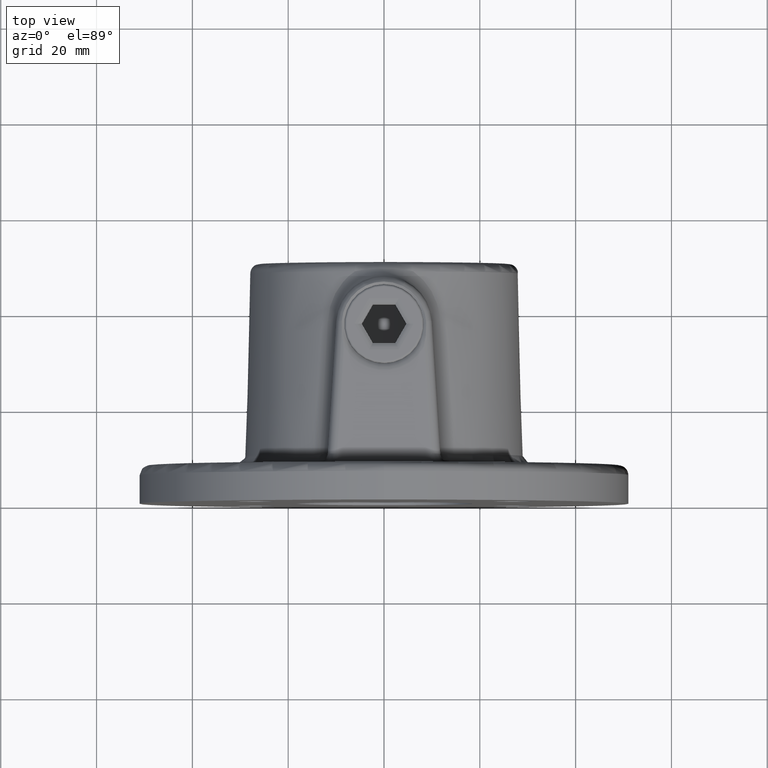
[diagram: clean part render]
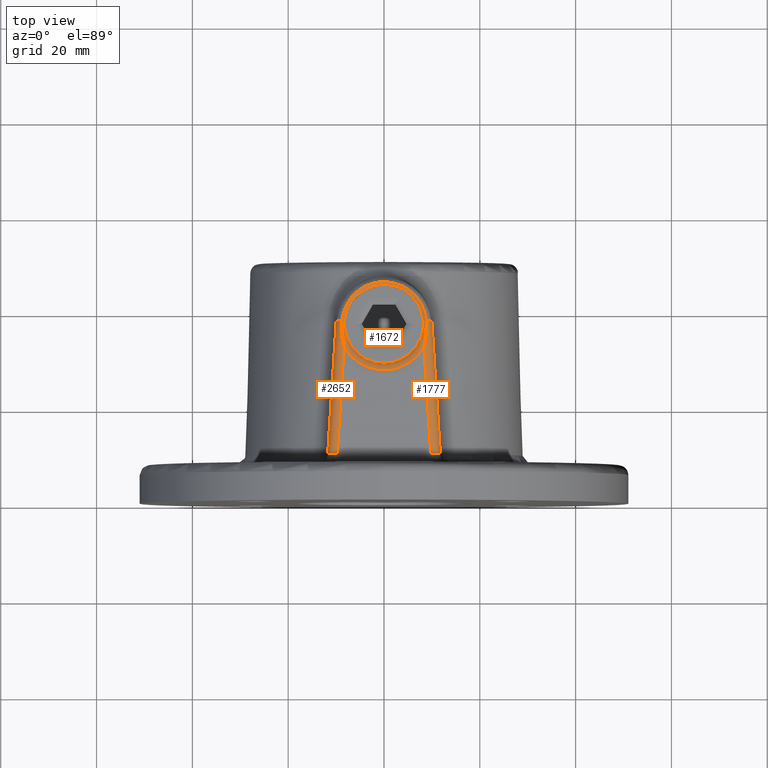
[diagram: same view with one multi-face feature highlighted, each face labeled with its STEP entity id]
A machine part, top view. The highlighted faces form ONE feature: a constant-radius fillet chain: 3 tangent blend faces with common blend radius 2 mm. The faces share edges in the B-rep.
Their STEP definitions:
[1] entity #1777 (Cylinder):
#27 = AXIS2_PLACEMENT_3D ( 'NONE', #1509, #2653, #392 ) ;
#68 = CARTESIAN_POINT ( 'NONE',  ( 8.840140252639351104, 35.75397313203941252, 32.36271962399694502 ) ) ;
#121 = FACE_OUTER_BOUND ( 'NONE', #2023, .T. ) ;
#156 = CYLINDRICAL_SURFACE ( 'NONE', #27, 1.999999999999999778 ) ;
#380 = VERTEX_POINT ( 'NONE', #2891 ) ;
#392 = DIRECTION ( 'NONE',  ( 0.9979482758850686253, 0.06402529701625069014, 0.000000000000000000 ) ) ;
#474 = VERTEX_POINT ( 'NONE', #2017 ) ;
#524 = DIRECTION ( 'NONE',  ( 0.9979482758850686253, 0.06402529701625069014, 0.000000000000000000 ) ) ;
#542 = VERTEX_POINT ( 'NONE', #1143 ) ;
#543 = CARTESIAN_POINT ( 'NONE',  ( 9.748684630784650196, 10.00000000000000178, 32.50000000000000000 ) ) ;
#713 = CARTESIAN_POINT ( 'NONE',  ( 8.794419181237159933, 37.56422292995571866, 32.32752393965168380 ) ) ;
#757 = ORIENTED_EDGE ( 'NONE', *, *, #1803, .F. ) ;
#760 = CARTESIAN_POINT ( 'NONE',  ( 8.794419181237159933, 37.56422292995571866, 32.32752393965168380 ) ) ;
#802 = CARTESIAN_POINT ( 'NONE',  ( 7.983586207080551667, 37.51220237613001984, 32.50000000000000000 ) ) ;
#812 = DIRECTION ( 'NONE',  ( -0.06402529701625196690, 0.9979482758850684032, 0.000000000000000000 ) ) ;
#840 = VECTOR ( 'NONE', #812, 1000.000000000000227 ) ;
#847 = EDGE_CURVE ( 'NONE', #474, #380, #1403, .T. ) ;
#904 = EDGE_CURVE ( 'NONE', #2655, #1555, #1843, .T. ) ;
#962 = CARTESIAN_POINT ( 'NONE',  ( 8.852629088635154631, 36.65691785782914991, 32.32752393965168380 ) ) ;
#981 = CARTESIAN_POINT ( 'NONE',  ( 8.326229983019695524, 32.17148891791024568, 32.50000000000000000 ) ) ;
#1143 = CARTESIAN_POINT ( 'NONE',  ( 8.326229983019695524, 32.17148891791024568, 32.50000000000000000 ) ) ;
#1216 = CARTESIAN_POINT ( 'NONE',  ( 11.76101184838016245, 9.871949405967496816, 31.67157287525380482 ) ) ;
#1225 = DIRECTION ( 'NONE',  ( 0.06402529701625069014, -0.9979482758850687363, 0.000000000000000000 ) ) ;
#1271 = VECTOR ( 'NONE', #2180, 1000.000000000000227 ) ;
#1305 = LINE ( 'NONE', #802, #840 ) ;
#1306 = CARTESIAN_POINT ( 'NONE',  ( 11.88111037413809257, 7.999999999999991118, 30.50000000000000000 ) ) ;
#1347 = LINE ( 'NONE', #1306, #1271 ) ;
#1396 = ORIENTED_EDGE ( 'NONE', *, *, #1905, .T. ) ;
#1403 =( BOUNDED_CURVE ( )  B_SPLINE_CURVE ( 3, ( #2091, #1216, #1673, #543 ),
 .UNSPECIFIED., .F., .F. ) 
 B_SPLINE_CURVE_WITH_KNOTS ( ( 4, 4 ),
 ( 0.000000000000000000, 1.570796326794896558 ),
 .UNSPECIFIED. ) 
 CURVE ( )  GEOMETRIC_REPRESENTATION_ITEM ( )  RATIONAL_B_SPLINE_CURVE ( ( 1.000000000000000000, 0.8047378541243649375, 0.8047378541243649375, 1.000000000000000000 ) ) 
 REPRESENTATION_ITEM ( '' )  );
#1420 = AXIS2_PLACEMENT_3D ( 'NONE', #1874, #1225, #524 ) ;
#1421 = CARTESIAN_POINT ( 'NONE',  ( 8.664466994970030811, 33.95507782771183969, 32.45103177333266586 ) ) ;
#1509 = CARTESIAN_POINT ( 'NONE',  ( 7.983586207080551667, 37.51220237613001984, 30.50000000000000000 ) ) ;
#1555 = VERTEX_POINT ( 'NONE', #713 ) ;
#1643 = CARTESIAN_POINT ( 'NONE',  ( 8.720991377461293936, 34.40447013257263364, 32.42791961314142668 ) ) ;
#1673 = CARTESIAN_POINT ( 'NONE',  ( 10.92747862291959038, 9.924989698685690698, 32.50000000000000000 ) ) ;
#1777 = ADVANCED_FACE ( 'NONE', ( #121 ), #156, .T. ) ;
#1803 = EDGE_CURVE ( 'NONE', #2655, #474, #1347, .T. ) ;
#1843 = CIRCLE ( 'NONE', #1420, 1.999999999999999778 ) ;
#1874 = CARTESIAN_POINT ( 'NONE',  ( 7.983586207080549890, 37.51220237613001984, 30.50000000000000000 ) ) ;
#1880 = ORIENTED_EDGE ( 'NONE', *, *, #847, .F. ) ;
#1905 = EDGE_CURVE ( 'NONE', #1555, #542, #2147, .T. ) ;
#1953 = EDGE_CURVE ( 'NONE', #380, #542, #1305, .T. ) ;
#2017 = CARTESIAN_POINT ( 'NONE',  ( 11.76101184838016067, 9.871949405967496816, 30.50000000000000000 ) ) ;
#2023 = EDGE_LOOP ( 'NONE', ( #1396, #2732, #1880, #757, #2762 ) ) ;
#2071 = CARTESIAN_POINT ( 'NONE',  ( 8.514900795657917243, 33.05967847606183341, 32.48578604476470133 ) ) ;
#2091 = CARTESIAN_POINT ( 'NONE',  ( 11.76101184838016067, 9.871949405967496816, 30.50000000000000000 ) ) ;
#2117 = CARTESIAN_POINT ( 'NONE',  ( 8.426347363389158573, 32.61451086413304523, 32.49674485365638787 ) ) ;
#2147 = B_SPLINE_CURVE_WITH_KNOTS ( 'NONE', 3,
 ( #760, #962, #68, #1643, #1421, #2540, #2071, #2117, #2337, #981 ),
 .UNSPECIFIED., .F., .F.,
 ( 4, 2, 2, 2, 4 ),
 ( 7.588157042667963343E-05, 0.002785708012949703830, 0.004140621234211204829, 0.004818077844841945137, 0.005495534455472685445 ),
 .UNSPECIFIED. ) ;
#2180 = DIRECTION ( 'NONE',  ( 0.06402529701625196690, -0.9979482758850684032, -0.000000000000000000 ) ) ;
#2270 = CARTESIAN_POINT ( 'NONE',  ( 9.979482758850686253, 37.64025297016252125, 30.50000000000000000 ) ) ;
#2337 = CARTESIAN_POINT ( 'NONE',  ( 8.377805628003882177, 32.39133913565494538, 32.50000000000002842 ) ) ;
#2540 = CARTESIAN_POINT ( 'NONE',  ( 8.555286316423522663, 33.28296755536700857, 32.47807949292666052 ) ) ;
#2653 = DIRECTION ( 'NONE',  ( 0.06402529701625198078, -0.9979482758850686253, 0.000000000000000000 ) ) ;
#2655 = VERTEX_POINT ( 'NONE', #2270 ) ;
#2732 = ORIENTED_EDGE ( 'NONE', *, *, #1953, .F. ) ;
#2762 = ORIENTED_EDGE ( 'NONE', *, *, #904, .T. ) ;
#2891 = CARTESIAN_POINT ( 'NONE',  ( 9.748684630784650196, 10.00000000000000178, 32.50000000000000000 ) ) ;
[2] entity #1672 (Torus):
#22 = EDGE_CURVE ( 'NONE', #1555, #2012, #925, .T. ) ;
#68 = CARTESIAN_POINT ( 'NONE',  ( 8.840140252639351104, 35.75397313203941252, 32.36271962399694502 ) ) ;
#78 = CARTESIAN_POINT ( 'NONE',  ( -8.554901898575627328, 33.28084689366197324, 32.47815232690503251 ) ) ;
#101 = CARTESIAN_POINT ( 'NONE',  ( 3.277515353936476750, 45.20784053934527691, 32.32752393965165538 ) ) ;
#105 = CARTESIAN_POINT ( 'NONE',  ( -8.852603207638519933, 36.65732125925284635, 32.32752393965168380 ) ) ;
#136 = EDGE_LOOP ( 'NONE', ( #2394, #2254, #2122, #2662, #2454, #1295 ) ) ;
#253 = CARTESIAN_POINT ( 'NONE',  ( 0.000000000000000000, 37.00000000000000000, 32.32752393965168380 ) ) ;
#294 = DIRECTION ( 'NONE',  ( 1.000000000000000000, 0.000000000000000000, 0.000000000000000000 ) ) ;
#333 = EDGE_CURVE ( 'NONE', #2012, #2912, #2692, .T. ) ;
#338 = CARTESIAN_POINT ( 'NONE',  ( -3.880208860125355930, 44.91227751357373421, 32.32752393965167670 ) ) ;
#415 = FACE_OUTER_BOUND ( 'NONE', #136, .T. ) ;
#447 = CIRCLE ( 'NONE', #2154, 7.624999999999985789 ) ;
#533 = CARTESIAN_POINT ( 'NONE',  ( 0.000000000000000000, 37.00000000000000000, 32.50000000000000000 ) ) ;
#540 = CARTESIAN_POINT ( 'NONE',  ( 1.333053472705922671, 45.72755005725559840, 32.33188907537315515 ) ) ;
#542 = VERTEX_POINT ( 'NONE', #1143 ) ;
#557 = CARTESIAN_POINT ( 'NONE',  ( -3.277595716135921045, 45.20780112943833728, 32.32752393965166249 ) ) ;
#615 = B_SPLINE_CURVE_WITH_KNOTS ( 'NONE', 3,
 ( #1901, #1024, #1499, #1701, #78, #1720, #2621, #1249, #105, #2590 ),
 .UNSPECIFIED., .F., .F.,
 ( 4, 2, 2, 2, 4 ),
 ( -1.199498676208840015E-05, 0.0006655749195347200088, 0.001343144825831528270, 0.002698284638425166911, 0.005408564263612443759 ),
 .UNSPECIFIED. ) ;
#625 = DIRECTION ( 'NONE',  ( 0.000000000000000000, 0.000000000000000000, 1.000000000000000000 ) ) ;
#713 = CARTESIAN_POINT ( 'NONE',  ( 8.794419181237159933, 37.56422292995571866, 32.32752393965168380 ) ) ;
#760 = CARTESIAN_POINT ( 'NONE',  ( 8.794419181237159933, 37.56422292995571866, 32.32752393965168380 ) ) ;
#772 = CARTESIAN_POINT ( 'NONE',  ( -2.650033589793583388, 45.43513917231819477, 32.32909601740258410 ) ) ;
#873 = FACE_OUTER_BOUND ( 'NONE', #1711, .T. ) ;
#925 = CIRCLE ( 'NONE', #2332, 8.812499999999994671 ) ;
#927 = CARTESIAN_POINT ( 'NONE',  ( -8.326229983019695524, 32.17148891791024568, 32.50000000000000000 ) ) ;
#962 = CARTESIAN_POINT ( 'NONE',  ( 8.852629088635154631, 36.65691785782914991, 32.32752393965168380 ) ) ;
#978 = CARTESIAN_POINT ( 'NONE',  ( 3.880208860129177317, 44.91227751357470055, 32.32752393965168380 ) ) ;
#981 = CARTESIAN_POINT ( 'NONE',  ( 8.326229983019695524, 32.17148891791024568, 32.50000000000000000 ) ) ;
#983 = DIRECTION ( 'NONE',  ( -1.000000000000000000, 0.000000000000000000, 0.000000000000000000 ) ) ;
#989 = CARTESIAN_POINT ( 'NONE',  ( -0.6669697184673075707, 45.80565013661925633, 32.33280777806359652 ) ) ;
#1008 = CARTESIAN_POINT ( 'NONE',  ( 1.668283452178197956, 45.66818920627386547, 32.33121985919007102 ) ) ;
#1015 = DIRECTION ( 'NONE',  ( 1.000000000000000000, 0.000000000000000000, 0.000000000000000000 ) ) ;
#1019 = CARTESIAN_POINT ( 'NONE',  ( 0.6664763395687569592, 45.80568276542905437, 32.33280820683658874 ) ) ;
#1024 = CARTESIAN_POINT ( 'NONE',  ( -8.377814250504139082, 32.39137590336611794, 32.50000000000001421 ) ) ;
#1058 = CARTESIAN_POINT ( 'NONE',  ( -8.794419181237158156, 37.56422292995571866, 32.32752393965168380 ) ) ;
#1143 = CARTESIAN_POINT ( 'NONE',  ( 8.326229983019695524, 32.17148891791024568, 32.50000000000000000 ) ) ;
#1153 = VERTEX_POINT ( 'NONE', #927 ) ;
#1204 = DIRECTION ( 'NONE',  ( 0.000000000000000000, 0.000000000000000000, 1.000000000000000000 ) ) ;
#1226 = CIRCLE ( 'NONE', #1309, 9.624999999999985789 ) ;
#1235 = CARTESIAN_POINT ( 'NONE',  ( 7.624999999999985789, 37.00000000000000000, 30.50000000000000000 ) ) ;
#1249 = CARTESIAN_POINT ( 'NONE',  ( -8.839839362891378727, 35.74641202598958500, 32.36305747080161410 ) ) ;
#1251 = DIRECTION ( 'NONE',  ( -0.000000000000000000, -0.000000000000000000, -1.000000000000000000 ) ) ;
#1292 = DIRECTION ( 'NONE',  ( 1.000000000000000000, 0.000000000000000000, 0.000000000000000000 ) ) ;
#1295 = ORIENTED_EDGE ( 'NONE', *, *, #1892, .T. ) ;
#1309 = AXIS2_PLACEMENT_3D ( 'NONE', #533, #1251, #294 ) ;
#1421 = CARTESIAN_POINT ( 'NONE',  ( 8.664466994970030811, 33.95507782771183969, 32.45103177333266586 ) ) ;
#1445 = VERTEX_POINT ( 'NONE', #1235 ) ;
#1467 = CARTESIAN_POINT ( 'NONE',  ( 0.000000000000000000, 37.00000000000000000, 30.50000000000000000 ) ) ;
#1499 = CARTESIAN_POINT ( 'NONE',  ( -8.426299384877662391, 32.61431451611244370, 32.49674477958210872 ) ) ;
#1500 = DIRECTION ( 'NONE',  ( 0.000000000000000000, 0.000000000000000000, 1.000000000000000000 ) ) ;
#1555 = VERTEX_POINT ( 'NONE', #713 ) ;
#1602 = CIRCLE ( 'NONE', #2090, 8.812499999999994671 ) ;
#1643 = CARTESIAN_POINT ( 'NONE',  ( 8.720991377461293936, 34.40447013257263364, 32.42791961314142668 ) ) ;
#1672 = ADVANCED_FACE ( 'NONE', ( #873, #415 ), #2219, .T. ) ;
#1681 = CARTESIAN_POINT ( 'NONE',  ( 2.649748555629004798, 45.43525974924425270, 32.32909676080277706 ) ) ;
#1690 = CARTESIAN_POINT ( 'NONE',  ( -1.669122586140464826, 45.66801648144324588, 32.33121810729434031 ) ) ;
#1701 = CARTESIAN_POINT ( 'NONE',  ( -8.514654644680760498, 33.05839635261639131, 32.48582249845194525 ) ) ;
#1703 = EDGE_CURVE ( 'NONE', #542, #1153, #1226, .T. ) ;
#1711 = EDGE_LOOP ( 'NONE', ( #2167 ) ) ;
#1720 = CARTESIAN_POINT ( 'NONE',  ( -8.663649012011628514, 33.94955612629663477, 32.45127872680060932 ) ) ;
#1784 = VERTEX_POINT ( 'NONE', #1058 ) ;
#1807 = AXIS2_PLACEMENT_3D ( 'NONE', #1467, #1500, #1015 ) ;
#1892 = EDGE_CURVE ( 'NONE', #2912, #1784, #1602, .T. ) ;
#1901 = CARTESIAN_POINT ( 'NONE',  ( -8.326229983019695524, 32.17148891791024568, 32.50000000000000000 ) ) ;
#1905 = EDGE_CURVE ( 'NONE', #1555, #542, #2147, .T. ) ;
#1967 = EDGE_CURVE ( 'NONE', #1153, #1784, #615, .T. ) ;
#2012 = VERTEX_POINT ( 'NONE', #2853 ) ;
#2055 = EDGE_CURVE ( 'NONE', #1445, #1445, #447, .T. ) ;
#2071 = CARTESIAN_POINT ( 'NONE',  ( 8.514900795657917243, 33.05967847606183341, 32.48578604476470133 ) ) ;
#2090 = AXIS2_PLACEMENT_3D ( 'NONE', #253, #1204, #2560 ) ;
#2117 = CARTESIAN_POINT ( 'NONE',  ( 8.426347363389158573, 32.61451086413304523, 32.49674485365638787 ) ) ;
#2122 = ORIENTED_EDGE ( 'NONE', *, *, #1905, .F. ) ;
#2128 = CARTESIAN_POINT ( 'NONE',  ( -0.0001742242603587572088, 45.84448182132794614, 32.33331730692749062 ) ) ;
#2147 = B_SPLINE_CURVE_WITH_KNOTS ( 'NONE', 3,
 ( #760, #962, #68, #1643, #1421, #2540, #2071, #2117, #2337, #981 ),
 .UNSPECIFIED., .F., .F.,
 ( 4, 2, 2, 2, 4 ),
 ( 7.588157042667963343E-05, 0.002785708012949703830, 0.004140621234211204829, 0.004818077844841945137, 0.005495534455472685445 ),
 .UNSPECIFIED. ) ;
#2154 = AXIS2_PLACEMENT_3D ( 'NONE', #2863, #625, #1292 ) ;
#2167 = ORIENTED_EDGE ( 'NONE', *, *, #2055, .F. ) ;
#2219 = TOROIDAL_SURFACE ( 'NONE', #1807, 9.624999999999985789, 2.000000000000000000 ) ;
#2254 = ORIENTED_EDGE ( 'NONE', *, *, #1703, .F. ) ;
#2332 = AXIS2_PLACEMENT_3D ( 'NONE', #2654, #2604, #983 ) ;
#2337 = CARTESIAN_POINT ( 'NONE',  ( 8.377805628003882177, 32.39133913565494538, 32.50000000000002842 ) ) ;
#2394 = ORIENTED_EDGE ( 'NONE', *, *, #1967, .F. ) ;
#2454 = ORIENTED_EDGE ( 'NONE', *, *, #333, .T. ) ;
#2540 = CARTESIAN_POINT ( 'NONE',  ( 8.555286316423522663, 33.28296755536700857, 32.47807949292666052 ) ) ;
#2560 = DIRECTION ( 'NONE',  ( -1.000000000000000000, 1.574784432092421517E-15, 0.000000000000000000 ) ) ;
#2580 = CARTESIAN_POINT ( 'NONE',  ( -1.333838740513433763, 45.72743276137281043, 32.33188774055992099 ) ) ;
#2590 = CARTESIAN_POINT ( 'NONE',  ( -8.794419181237158156, 37.56422292995571866, 32.32752393965168380 ) ) ;
#2604 = DIRECTION ( 'NONE',  ( 0.000000000000000000, 0.000000000000000000, 1.000000000000000000 ) ) ;
#2621 = CARTESIAN_POINT ( 'NONE',  ( -8.720161607332634901, 34.39717425958616559, 32.42828600748776324 ) ) ;
#2626 = CARTESIAN_POINT ( 'NONE',  ( -3.880208860125355930, 44.91227751357373421, 32.32752393965167670 ) ) ;
#2654 = CARTESIAN_POINT ( 'NONE',  ( 0.000000000000000000, 37.00000000000000000, 32.32752393965168380 ) ) ;
#2662 = ORIENTED_EDGE ( 'NONE', *, *, #22, .T. ) ;
#2692 = B_SPLINE_CURVE_WITH_KNOTS ( 'NONE', 3,
 ( #978, #101, #1681, #1008, #540, #1019, #2128, #989, #2580, #1690, #772, #557, #338 ),
 .UNSPECIFIED., .F., .F.,
 ( 4, 2, 2, 1, 2, 2, 4 ),
 ( 0.0005867305941200444365, 0.002589780863999594385, 0.003591305998939369522, 0.004592831133879144226, 0.005594356268818918496, 0.006595881403758694500, 0.008598931673638239570 ),
 .UNSPECIFIED. ) ;
#2853 = CARTESIAN_POINT ( 'NONE',  ( 3.880208860129177317, 44.91227751357470055, 32.32752393965168380 ) ) ;
#2863 = CARTESIAN_POINT ( 'NONE',  ( 0.000000000000000000, 37.00000000000000000, 30.50000000000000000 ) ) ;
#2912 = VERTEX_POINT ( 'NONE', #2626 ) ;
[3] entity #2652 (Cylinder):
#6 = ORIENTED_EDGE ( 'NONE', *, *, #1069, .F. ) ;
#78 = CARTESIAN_POINT ( 'NONE',  ( -8.554901898575627328, 33.28084689366197324, 32.47815232690503251 ) ) ;
#105 = CARTESIAN_POINT ( 'NONE',  ( -8.852603207638519933, 36.65732125925284635, 32.32752393965168380 ) ) ;
#200 = DIRECTION ( 'NONE',  ( -0.9979482758850686253, 0.06402529701625069014, 0.000000000000000000 ) ) ;
#267 = CARTESIAN_POINT ( 'NONE',  ( -11.76101184838016245, 9.871949405967496816, 31.67157287525380482 ) ) ;
#417 = CIRCLE ( 'NONE', #851, 1.999999999999999778 ) ;
#471 = ORIENTED_EDGE ( 'NONE', *, *, #1967, .T. ) ;
#477 = DIRECTION ( 'NONE',  ( -0.06402529701625069014, -0.9979482758850687363, 0.000000000000000000 ) ) ;
#546 = EDGE_LOOP ( 'NONE', ( #2386, #754, #6, #2700, #471 ) ) ;
#615 = B_SPLINE_CURVE_WITH_KNOTS ( 'NONE', 3,
 ( #1901, #1024, #1499, #1701, #78, #1720, #2621, #1249, #105, #2590 ),
 .UNSPECIFIED., .F., .F.,
 ( 4, 2, 2, 2, 4 ),
 ( -1.199498676208840015E-05, 0.0006655749195347200088, 0.001343144825831528270, 0.002698284638425166911, 0.005408564263612443759 ),
 .UNSPECIFIED. ) ;
#754 = ORIENTED_EDGE ( 'NONE', *, *, #777, .F. ) ;
#777 = EDGE_CURVE ( 'NONE', #1566, #1372, #2062, .T. ) ;
#851 = AXIS2_PLACEMENT_3D ( 'NONE', #897, #477, #2049 ) ;
#879 = CARTESIAN_POINT ( 'NONE',  ( -9.748684630784650196, 10.00000000000000178, 32.50000000000000000 ) ) ;
#885 = DIRECTION ( 'NONE',  ( 0.06402529701625198078, 0.9979482758850686253, -0.000000000000000000 ) ) ;
#897 = CARTESIAN_POINT ( 'NONE',  ( -7.983586207080549890, 37.51220237613001984, 30.50000000000000000 ) ) ;
#927 = CARTESIAN_POINT ( 'NONE',  ( -8.326229983019695524, 32.17148891791024568, 32.50000000000000000 ) ) ;
#943 = DIRECTION ( 'NONE',  ( 0.06402529701625196690, 0.9979482758850684032, -0.000000000000000000 ) ) ;
#944 = CARTESIAN_POINT ( 'NONE',  ( -11.76101184838016067, 9.871949405967496816, 30.50000000000000000 ) ) ;
#1024 = CARTESIAN_POINT ( 'NONE',  ( -8.377814250504139082, 32.39137590336611794, 32.50000000000001421 ) ) ;
#1058 = CARTESIAN_POINT ( 'NONE',  ( -8.794419181237158156, 37.56422292995571866, 32.32752393965168380 ) ) ;
#1069 = EDGE_CURVE ( 'NONE', #2165, #1566, #2309, .T. ) ;
#1133 = EDGE_CURVE ( 'NONE', #1153, #2165, #1480, .T. ) ;
#1141 = VECTOR ( 'NONE', #1661, 1000.000000000000227 ) ;
#1153 = VERTEX_POINT ( 'NONE', #927 ) ;
#1249 = CARTESIAN_POINT ( 'NONE',  ( -8.839839362891378727, 35.74641202598958500, 32.36305747080161410 ) ) ;
#1372 = VERTEX_POINT ( 'NONE', #1971 ) ;
#1426 = CARTESIAN_POINT ( 'NONE',  ( -11.76101184838016067, 9.871949405967496816, 30.50000000000000000 ) ) ;
#1480 = LINE ( 'NONE', #2769, #1141 ) ;
#1481 = EDGE_CURVE ( 'NONE', #1784, #1372, #417, .T. ) ;
#1499 = CARTESIAN_POINT ( 'NONE',  ( -8.426299384877662391, 32.61431451611244370, 32.49674477958210872 ) ) ;
#1566 = VERTEX_POINT ( 'NONE', #944 ) ;
#1580 = CARTESIAN_POINT ( 'NONE',  ( -7.983586207080551667, 37.51220237613001984, 30.50000000000000000 ) ) ;
#1604 = FACE_OUTER_BOUND ( 'NONE', #546, .T. ) ;
#1634 = CARTESIAN_POINT ( 'NONE',  ( -9.979482758850686253, 37.64025297016252125, 30.50000000000000000 ) ) ;
#1661 = DIRECTION ( 'NONE',  ( -0.06402529701625196690, -0.9979482758850684032, 0.000000000000000000 ) ) ;
#1701 = CARTESIAN_POINT ( 'NONE',  ( -8.514654644680760498, 33.05839635261639131, 32.48582249845194525 ) ) ;
#1720 = CARTESIAN_POINT ( 'NONE',  ( -8.663649012011628514, 33.94955612629663477, 32.45127872680060932 ) ) ;
#1784 = VERTEX_POINT ( 'NONE', #1058 ) ;
#1851 = VECTOR ( 'NONE', #943, 1000.000000000000227 ) ;
#1901 = CARTESIAN_POINT ( 'NONE',  ( -8.326229983019695524, 32.17148891791024568, 32.50000000000000000 ) ) ;
#1967 = EDGE_CURVE ( 'NONE', #1153, #1784, #615, .T. ) ;
#1971 = CARTESIAN_POINT ( 'NONE',  ( -9.979482758850686253, 37.64025297016252125, 30.50000000000000000 ) ) ;
#2049 = DIRECTION ( 'NONE',  ( 0.9979482758850686253, -0.06402529701625069014, 0.000000000000000000 ) ) ;
#2062 = LINE ( 'NONE', #1634, #1851 ) ;
#2165 = VERTEX_POINT ( 'NONE', #879 ) ;
#2195 = AXIS2_PLACEMENT_3D ( 'NONE', #1580, #885, #200 ) ;
#2309 =( BOUNDED_CURVE ( )  B_SPLINE_CURVE ( 3, ( #2534, #2525, #267, #1426 ),
 .UNSPECIFIED., .F., .F. ) 
 B_SPLINE_CURVE_WITH_KNOTS ( ( 4, 4 ),
 ( 1.570796326794896558, 3.141592653589793116 ),
 .UNSPECIFIED. ) 
 CURVE ( )  GEOMETRIC_REPRESENTATION_ITEM ( )  RATIONAL_B_SPLINE_CURVE ( ( 1.000000000000000000, 0.8047378541243649375, 0.8047378541243649375, 1.000000000000000000 ) ) 
 REPRESENTATION_ITEM ( '' )  );
#2386 = ORIENTED_EDGE ( 'NONE', *, *, #1481, .T. ) ;
#2525 = CARTESIAN_POINT ( 'NONE',  ( -10.92747862291959038, 9.924989698685690698, 32.50000000000000000 ) ) ;
#2534 = CARTESIAN_POINT ( 'NONE',  ( -9.748684630784650196, 10.00000000000000178, 32.50000000000000000 ) ) ;
#2590 = CARTESIAN_POINT ( 'NONE',  ( -8.794419181237158156, 37.56422292995571866, 32.32752393965168380 ) ) ;
#2621 = CARTESIAN_POINT ( 'NONE',  ( -8.720161607332634901, 34.39717425958616559, 32.42828600748776324 ) ) ;
#2652 = ADVANCED_FACE ( 'NONE', ( #1604 ), #2860, .T. ) ;
#2700 = ORIENTED_EDGE ( 'NONE', *, *, #1133, .F. ) ;
#2769 = CARTESIAN_POINT ( 'NONE',  ( -9.885213822367957093, 7.871949405967488822, 32.50000000000000000 ) ) ;
#2860 = CYLINDRICAL_SURFACE ( 'NONE', #2195, 1.999999999999999778 ) ;